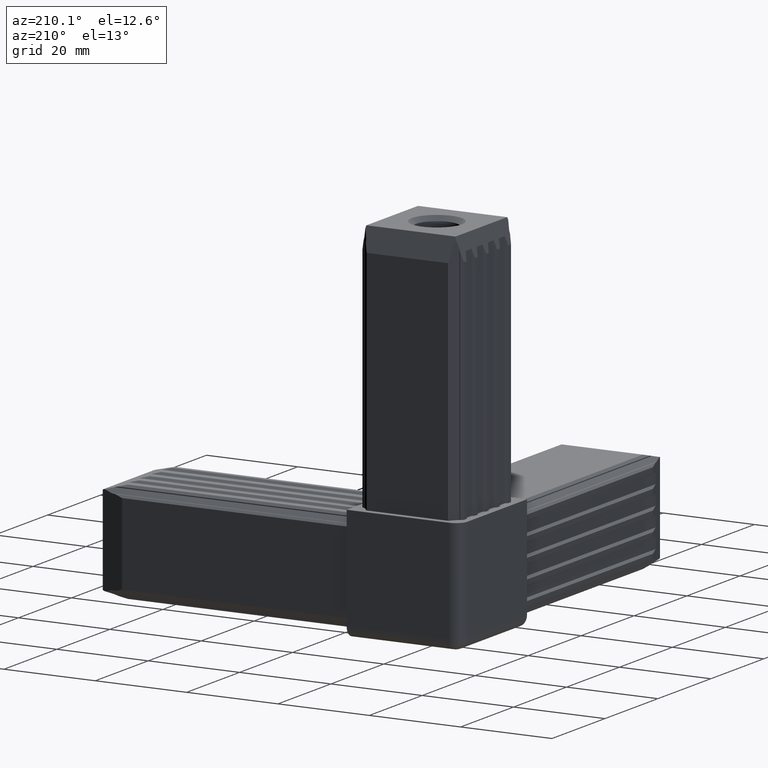
[diagram: clean part render]
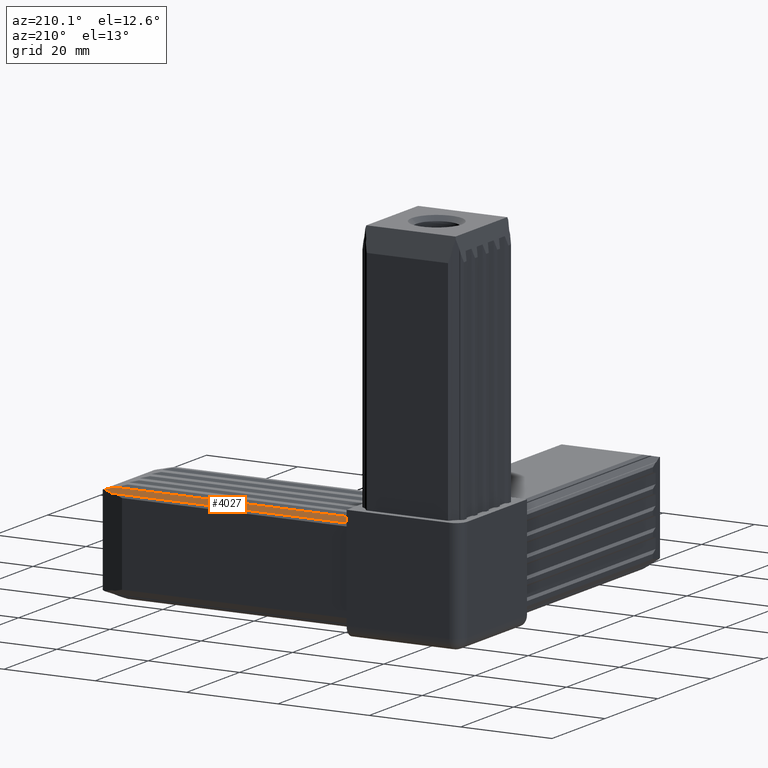
[diagram: same view with one face highlighted and labeled with its STEP entity id]
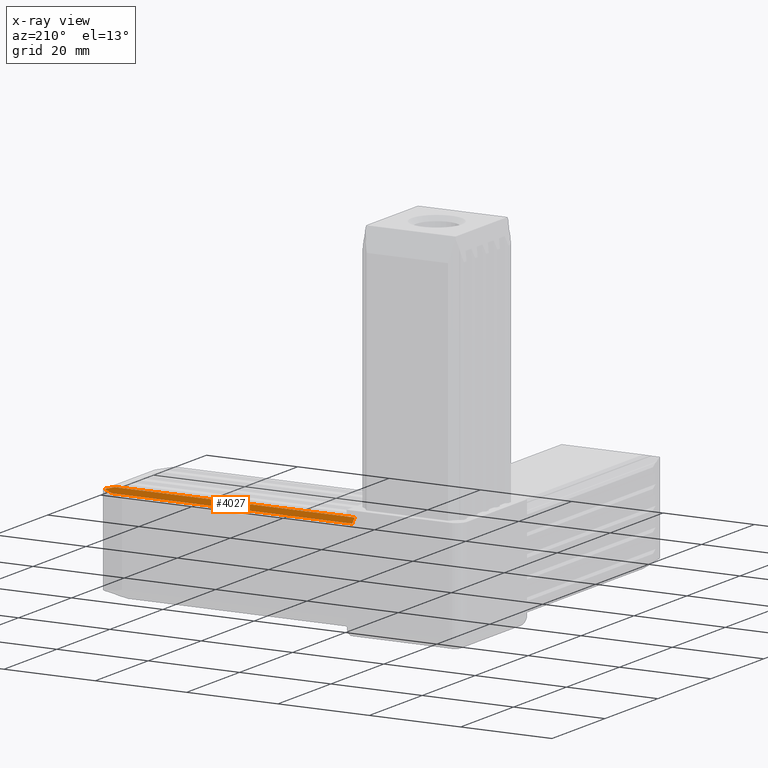
[diagram: x-ray of the same camera — body ghosted, the highlighted face saturated]
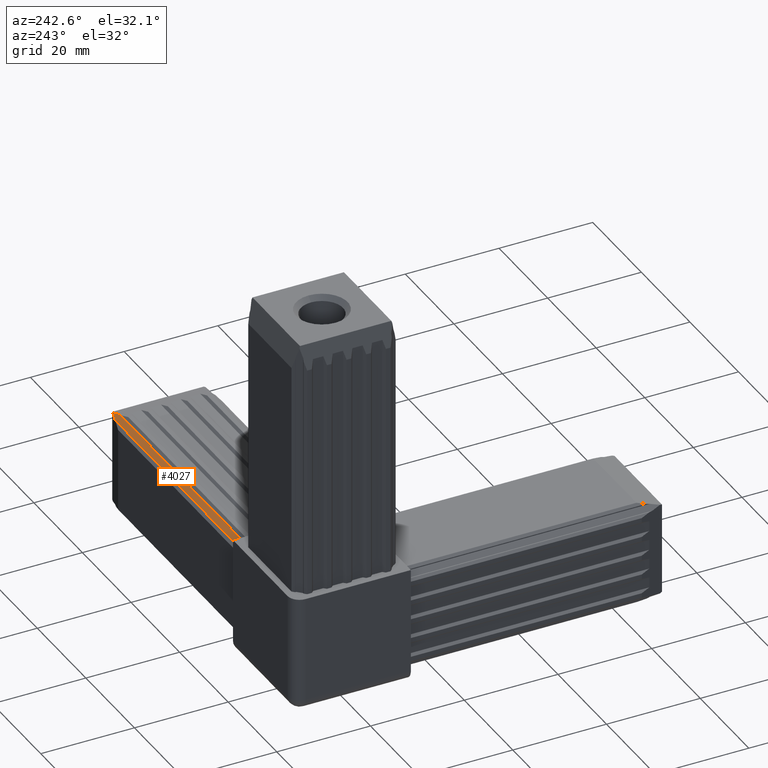
[diagram: same view with one face highlighted and labeled with its STEP entity id]
A machine part, auxiliary view. The second image highlights one B-rep face of the part: STEP entity #4027.
The next image is the same camera in x-ray: the body ghosted, the highlighted face saturated — about 0% of this face is hidden behind the body in this view.
A second angle (auxiliary view) of the same face is appended — the face is thin or edge-on in the first view.
In plain terms, the highlighted planar face has unit normal (0, 0.7071, 0.7071).
Its self-contained STEP definition (entity closure, byte-faithful):
#108=PLANE('',#4270);
#316=FACE_OUTER_BOUND('',#522,.T.);
#522=EDGE_LOOP('',(#3384,#3385,#3386,#3387,#3388));
#865=LINE('',#5911,#1429);
#895=LINE('',#5972,#1459);
#1019=LINE('',#6218,#1583);
#1021=LINE('',#6222,#1585);
#1022=LINE('',#6223,#1586);
#1429=VECTOR('',#4757,10.);
#1459=VECTOR('',#4795,10.);
#1583=VECTOR('',#5007,10.);
#1585=VECTOR('',#5011,10.);
#1586=VECTOR('',#5012,10.);
#1983=VERTEX_POINT('',#5895);
#1990=VERTEX_POINT('',#5909);
#2017=VERTEX_POINT('',#5971);
#2095=VERTEX_POINT('',#6217);
#2096=VERTEX_POINT('',#6221);
#2426=EDGE_CURVE('',#1990,#1983,#865,.T.);
#2456=EDGE_CURVE('',#1983,#2017,#895,.T.);
#2580=EDGE_CURVE('',#2095,#2017,#1019,.T.);
#2582=EDGE_CURVE('',#2096,#1990,#1021,.T.);
#2583=EDGE_CURVE('',#2095,#2096,#1022,.T.);
#3384=ORIENTED_EDGE('',*,*,#2426,.F.);
#3385=ORIENTED_EDGE('',*,*,#2582,.F.);
#3386=ORIENTED_EDGE('',*,*,#2583,.F.);
#3387=ORIENTED_EDGE('',*,*,#2580,.T.);
#3388=ORIENTED_EDGE('',*,*,#2456,.F.);
#4027=ADVANCED_FACE('',(#316),#108,.T.);
#4270=AXIS2_PLACEMENT_3D('',#6220,#5009,#5010);
#4757=DIRECTION('',(0.93511312653103,-0.250562807085731,0.250562807085731));
#4795=DIRECTION('',(-0.935113126531029,-0.250562807085732,0.250562807085732));
#5007=DIRECTION('',(1.,0.,0.));
#5009=DIRECTION('center_axis',(0.,0.707106781186547,0.707106781186548));
#5010=DIRECTION('ref_axis',(0.,-0.707106781186548,0.707106781186547));
#5011=DIRECTION('',(1.,0.,0.));
#5012=DIRECTION('',(0.,0.707106781186548,-0.707106781186547));
#5895=CARTESIAN_POINT('',(66.978460969082,9.90000000000003,9.89999999999977));
#5909=CARTESIAN_POINT('',(65.1124355652974,10.4000000000001,9.39999999999972));
#5911=CARTESIAN_POINT('',(40.4340695160484,17.012548253416,2.78745174658386));
#5971=CARTESIAN_POINT('',(65.1124355652971,9.39999999999989,10.3999999999999));
#5972=CARTESIAN_POINT('',(40.9729700268791,2.93184970326184,16.8681502967379));
#6217=CARTESIAN_POINT('',(12.5,9.39999999999989,10.3999999999999));
#6218=CARTESIAN_POINT('',(12.5,9.39999999999989,10.3999999999999));
#6220=CARTESIAN_POINT('Origin',(12.5,10.4000000000001,9.39999999999972));
#6221=CARTESIAN_POINT('',(12.5,10.4000000000001,9.39999999999972));
#6222=CARTESIAN_POINT('',(12.5,10.4000000000001,9.39999999999972));
#6223=CARTESIAN_POINT('',(12.5,7.02499999999997,12.7749999999998));